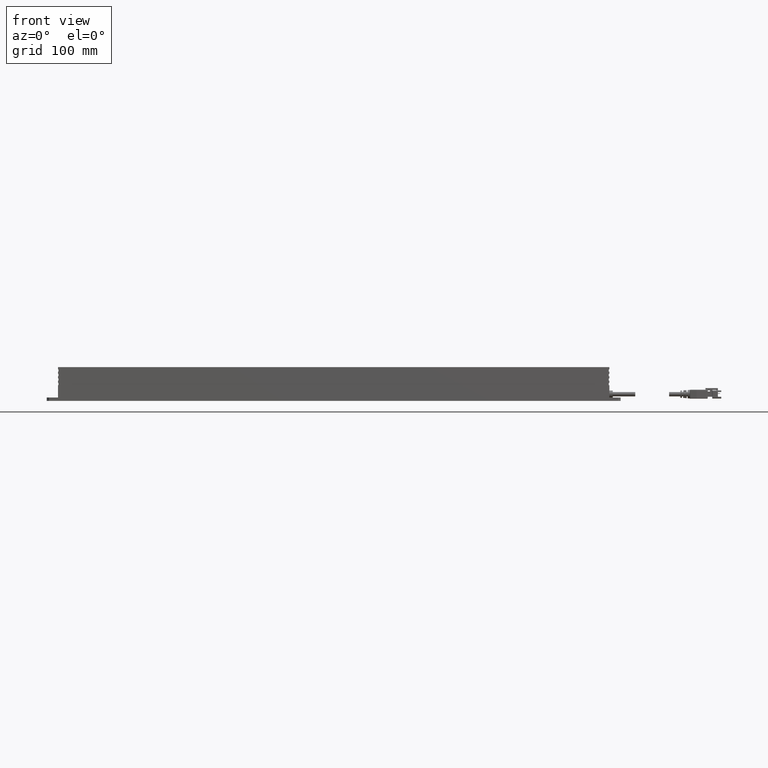
[diagram: clean part render]
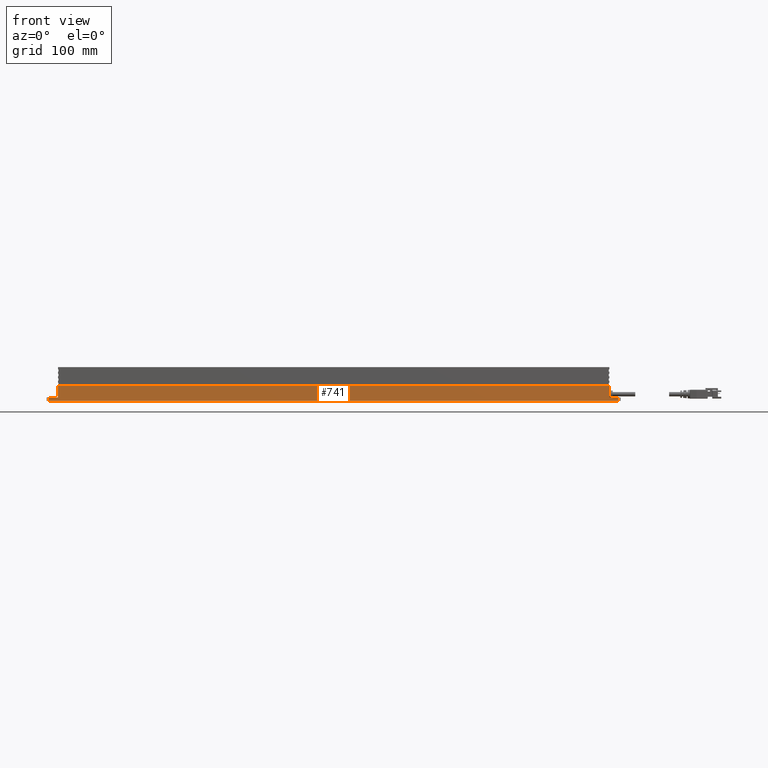
[diagram: same view with one face highlighted and labeled with its STEP entity id]
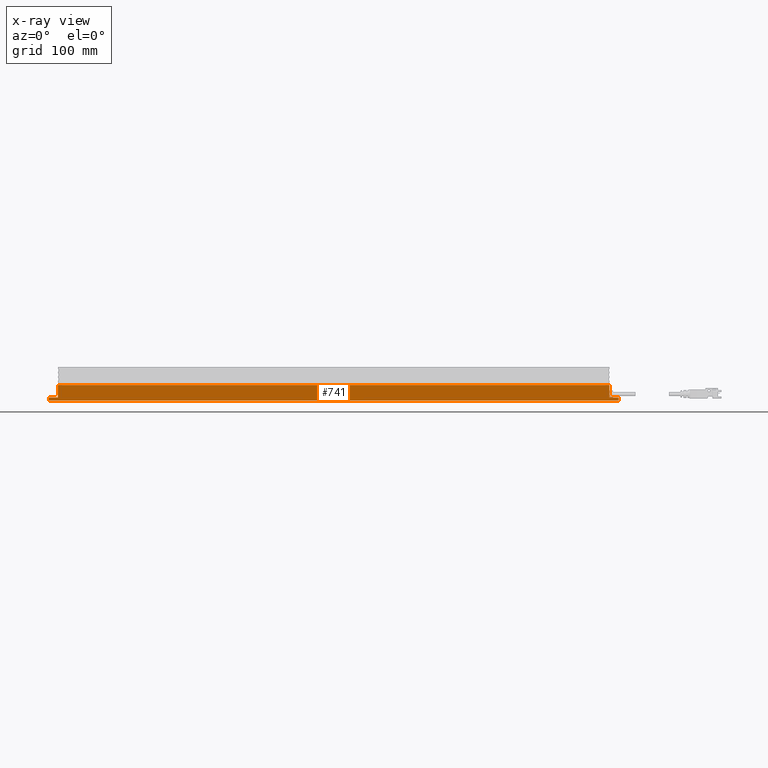
[diagram: x-ray of the same camera — body ghosted, the highlighted face saturated]
A machine part, front view. The second image highlights one B-rep face of the part: STEP entity #741.
The next image is the same camera in x-ray: the body ghosted, the highlighted face saturated — about 0% of this face is hidden behind the body in this view.
In plain terms, the highlighted planar face has unit normal (0, -1, -0).
Its self-contained STEP definition (entity closure, byte-faithful):
#741=ADVANCED_FACE('0:169',(#2058),#2059,.T.);
#2058=FACE_OUTER_BOUND('',#3845,.T.);
#2059=PLANE('',#3846);
#3845=EDGE_LOOP('',(#6924,#6925,#6926,#6927,#6928,#6929,#6930,#6931));
#3846=AXIS2_PLACEMENT_3D('',#6932,#6933,#6934);
#6924=ORIENTED_EDGE('',*,*,#9414,.T.);
#6925=ORIENTED_EDGE('',*,*,#9415,.F.);
#6926=ORIENTED_EDGE('',*,*,#9416,.T.);
#6927=ORIENTED_EDGE('',*,*,#9334,.T.);
#6928=ORIENTED_EDGE('',*,*,#9417,.F.);
#6929=ORIENTED_EDGE('',*,*,#9316,.T.);
#6930=ORIENTED_EDGE('',*,*,#9371,.F.);
#6931=ORIENTED_EDGE('',*,*,#9418,.F.);
#6932=CARTESIAN_POINT('',(-0.2545,-0.1245,-4.35415592470179E-16));
#6933=DIRECTION('',(0.0,-1.0,-3.49148336110938E-15));
#6934=DIRECTION('',(1.0,0.0,0.0));
#9316=EDGE_CURVE('0:658',#9733,#9731,#9734,.T.);
#9334=EDGE_CURVE('0:655',#9767,#9765,#9768,.T.);
#9371=EDGE_CURVE('0:571',#9833,#9731,#9834,.T.);
#9414=EDGE_CURVE('0:649',#9899,#9900,#9901,.T.);
#9415=EDGE_CURVE('0:907',#9902,#9900,#9903,.T.);
#9416=EDGE_CURVE('0:652',#9902,#9767,#9904,.T.);
#9417=EDGE_CURVE('0:898',#9733,#9765,#9905,.T.);
#9418=EDGE_CURVE('0:529',#9899,#9833,#9906,.T.);
#9731=VERTEX_POINT('',#10269);
#9733=VERTEX_POINT('',#10272);
#9734=LINE('',#10273,#10274);
#9765=VERTEX_POINT('',#10315);
#9767=VERTEX_POINT('',#10318);
#9768=LINE('',#10319,#10320);
#9833=VERTEX_POINT('',#10410);
#9834=LINE('',#10411,#10412);
#9899=VERTEX_POINT('',#10509);
#9900=VERTEX_POINT('',#10510);
#9901=LINE('',#10511,#10512);
#9902=VERTEX_POINT('',#10513);
#9903=LINE('',#10514,#10515);
#9904=LINE('',#10516,#10517);
#9905=LINE('',#10518,#10519);
#9906=LINE('',#10520,#10521);
#10269=CARTESIAN_POINT('',(0.2445,-0.1245,0.00299999999999956));
#10272=CARTESIAN_POINT('',(0.2525,-0.1245,0.00299999999999956));
#10273=CARTESIAN_POINT('',(0.2525,-0.1245,0.00299999999999956));
#10274=VECTOR('',#10960,1.0);
#10315=CARTESIAN_POINT('',(0.2525,-0.1245,-4.35415592470179E-16));
#10318=CARTESIAN_POINT('',(-0.2525,-0.1245,-4.35415592470179E-16));
#10319=CARTESIAN_POINT('',(-0.2525,-0.1245,-4.35415592470179E-16));
#10320=VECTOR('',#10984,1.0);
#10410=CARTESIAN_POINT('',(0.2445,-0.1245,0.0139999999999996));
#10411=CARTESIAN_POINT('',(0.2445,-0.1245,0.0139999999999996));
#10412=VECTOR('',#11022,1.0);
#10509=CARTESIAN_POINT('',(-0.2445,-0.1245,0.0139999999999996));
#10510=CARTESIAN_POINT('',(-0.2445,-0.1245,0.00299999999999956));
#10511=CARTESIAN_POINT('',(-0.2445,-0.1245,0.0139999999999996));
#10512=VECTOR('',#11055,1.0);
#10513=CARTESIAN_POINT('',(-0.2525,-0.1245,0.00299999999999956));
#10514=CARTESIAN_POINT('',(-0.2525,-0.1245,0.00299999999999956));
#10515=VECTOR('',#11056,1.0);
#10516=CARTESIAN_POINT('',(-0.2525,-0.1245,0.00299999999999956));
#10517=VECTOR('',#11057,1.0);
#10518=CARTESIAN_POINT('',(0.2525,-0.1245,0.00299999999999956));
#10519=VECTOR('',#11058,1.0);
#10520=CARTESIAN_POINT('',(-0.2445,-0.1245,0.0139999999999996));
#10521=VECTOR('',#11059,1.0);
#10960=DIRECTION('',(-1.0,-0.0,0.0));
#10984=DIRECTION('',(1.0,0.0,0.0));
#11022=DIRECTION('',(0.0,3.49148336110938E-15,-1.0));
#11055=DIRECTION('',(0.0,3.49148336110938E-15,-1.0));
#11056=DIRECTION('',(1.0,0.0,0.0));
#11057=DIRECTION('',(0.0,3.49148336110938E-15,-1.0));
#11058=DIRECTION('',(0.0,3.49148336110938E-15,-1.0));
#11059=DIRECTION('',(1.0,0.0,0.0));